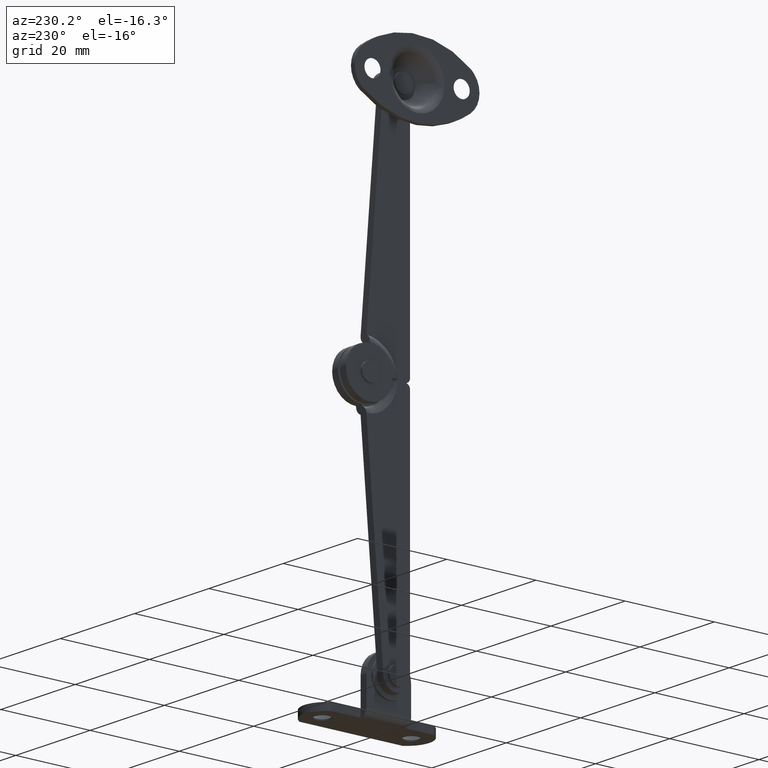
[diagram: clean part render]
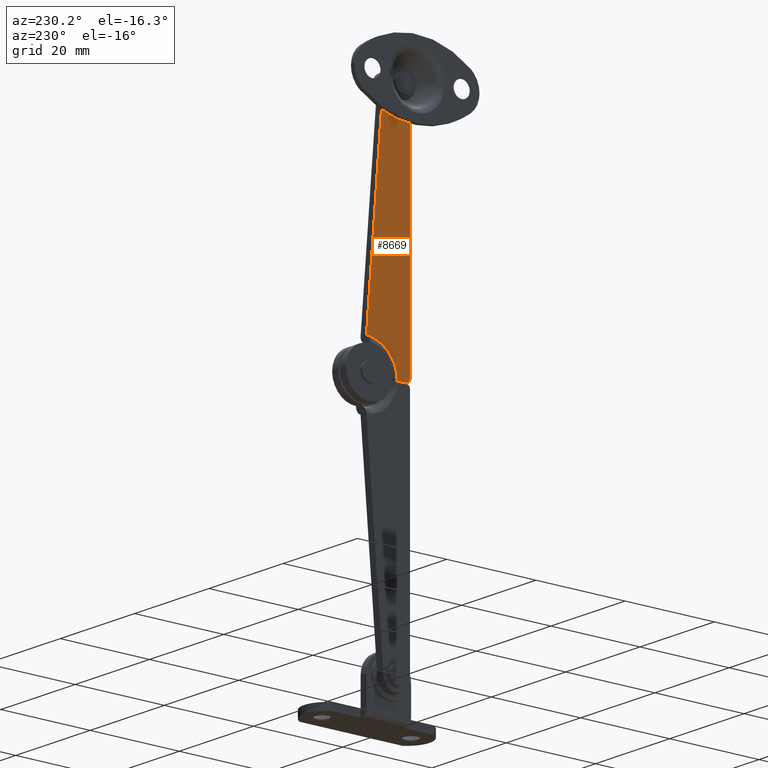
[diagram: same view with one face highlighted and labeled with its STEP entity id]
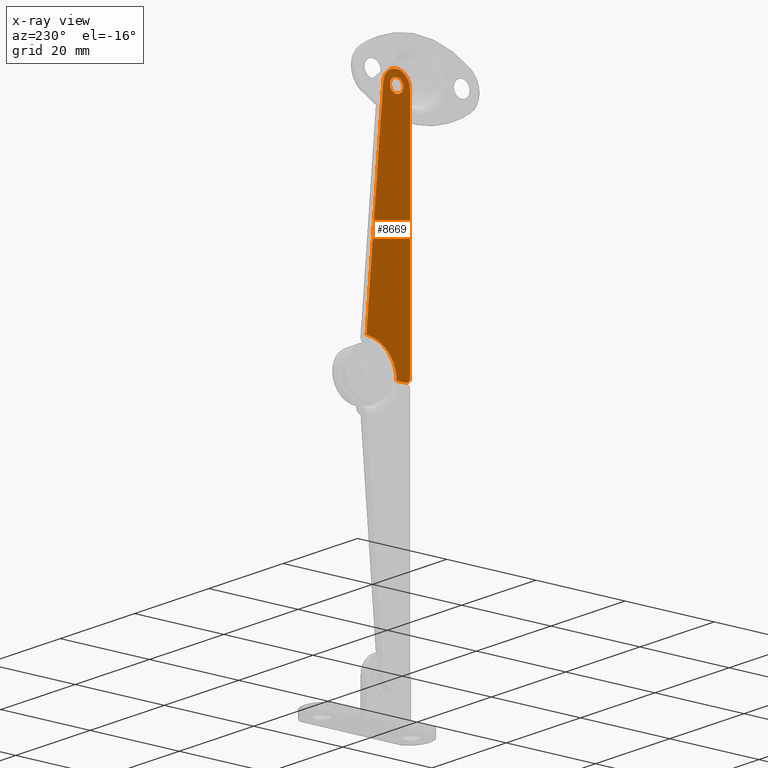
[diagram: x-ray of the same camera — body ghosted, the highlighted face saturated]
A machine part, auxiliary view. The second image highlights one B-rep face of the part: STEP entity #8669.
The next image is the same camera in x-ray: the body ghosted, the highlighted face saturated — about 0% of this face is hidden behind the body in this view.
In plain terms, the highlighted face is a freeform B-spline surface patch.
Its self-contained STEP definition (entity closure, byte-faithful):
#7969=CARTESIAN_POINT('',(5.500000000000000,1.105916693889246,51.986599350237071));
#7970=VERTEX_POINT('',#7969);
#7976=CARTESIAN_POINT('',(5.500000000000000,0.0,51.499984999999903));
#7977=VERTEX_POINT('',#7976);
#7978=CARTESIAN_POINT('',(5.500000000000000,1.105916693889246,51.986599350237071));
#7979=CARTESIAN_POINT('',(5.500000000000007,0.974766803413467,51.843185368621207));
#7980=CARTESIAN_POINT('',(5.499999999999983,0.634431930091727,51.593065090398753));
#7981=CARTESIAN_POINT('',(5.500000000000008,0.220267230335667,51.499630432689003));
#7982=CARTESIAN_POINT('',(5.500000000000000,0.0,51.499984999999903));
#7983=B_SPLINE_CURVE_WITH_KNOTS('',3,(#7978,#7979,#7980,#7981,#7982),.UNSPECIFIED.,.F.,.U.,(4,1,4),(0.000000086124274,0.582950313393399,1.243582380989990),.UNSPECIFIED.);
#7984=EDGE_CURVE('',#7970,#7977,#7983,.T.);
#7986=CARTESIAN_POINT('',(5.500000000000000,-1.499999999997086,52.999987956542753));
#7987=VERTEX_POINT('',#7986);
#7988=CARTESIAN_POINT('',(5.500000000000000,0.0,51.499984999999903));
#7989=CARTESIAN_POINT('',(5.499999999999999,-0.220947910850182,51.499695141368527));
#7990=CARTESIAN_POINT('',(5.499999999999985,-0.576546858355764,51.580028237526257));
#7991=CARTESIAN_POINT('',(5.500000000000021,-0.960563261711669,51.830059887139733));
#7992=CARTESIAN_POINT('',(5.499999999999971,-1.232707470878840,52.115804594653483));
#7993=CARTESIAN_POINT('',(5.500000000000045,-1.442468968291682,52.496887048927583));
#7994=CARTESIAN_POINT('',(5.499999999999997,-1.500099450196353,52.828172124453658));
#7995=CARTESIAN_POINT('',(5.500000000000000,-1.499999999997086,52.999987956542753));
#7996=B_SPLINE_CURVE_WITH_KNOTS('',3,(#7988,#7989,#7990,#7991,#7992,#7993,#7994,#7995),.UNSPECIFIED.,.F.,.U.,(4,1,1,1,1,4),(0.000000283921502,0.662700747276204,1.067679596140593,1.362179177619558,1.840828248528661,2.356255282954716),.UNSPECIFIED.);
#7997=EDGE_CURVE('',#7977,#7987,#7996,.T.);
#7999=CARTESIAN_POINT('',(5.500000000000000,0.0,54.499984999999903));
#8000=VERTEX_POINT('',#7999);
#8001=CARTESIAN_POINT('',(5.500000000000000,-1.499999999997086,52.999987956542753));
#8002=CARTESIAN_POINT('',(5.500000000000008,-1.500345512336090,53.220947114007693));
#8003=CARTESIAN_POINT('',(5.499999999999988,-1.419902177905739,53.576520632590217));
#8004=CARTESIAN_POINT('',(5.500000000000015,-1.169937325404411,53.960551616229267));
#8005=CARTESIAN_POINT('',(5.499999999999991,-0.884186536591172,54.232695602077428));
#8006=CARTESIAN_POINT('',(5.500000000000013,-0.503099174663944,54.442453581712137));
#8007=CARTESIAN_POINT('',(5.499999999999995,-0.171815620360912,54.500084185203640));
#8008=CARTESIAN_POINT('',(5.500000000000000,0.0,54.499984999999903));
#8009=B_SPLINE_CURVE_WITH_KNOTS('',3,(#8001,#8002,#8003,#8004,#8005,#8006,#8007,#8008),.UNSPECIFIED.,.F.,.U.,(4,1,1,1,1,4),(0.000000287959406,0.662699813077106,1.067678081423677,1.362177245450322,1.840825642440949,2.356251950158681),.UNSPECIFIED.);
#8010=EDGE_CURVE('',#7987,#8000,#8009,.T.);
#8012=CARTESIAN_POINT('',(5.500000000000000,1.074976047903055,54.046132350924211));
#8013=VERTEX_POINT('',#8012);
#8014=CARTESIAN_POINT('',(5.500000000000000,0.0,54.499984999999903));
#8015=CARTESIAN_POINT('',(5.499999999999996,0.187294913334052,54.500165317788863));
#8016=CARTESIAN_POINT('',(5.500000000000009,0.586636586035822,54.424126146093947));
#8017=CARTESIAN_POINT('',(5.499999999999993,0.927139462178764,54.198469280317887));
#8018=CARTESIAN_POINT('',(5.500000000000000,1.074976047903055,54.046132350924211));
#8019=B_SPLINE_CURVE_WITH_KNOTS('',3,(#8014,#8015,#8016,#8017,#8018),.UNSPECIFIED.,.F.,.U.,(4,1,4),(0.000000071665139,0.561822164002181,1.198513678600099),.UNSPECIFIED.);
#8020=EDGE_CURVE('',#8000,#8013,#8019,.T.);
#8055=CARTESIAN_POINT('',(5.500000000000000,1.499999999997086,52.999982043457031));
#8056=VERTEX_POINT('',#8055);
#8057=CARTESIAN_POINT('',(5.500000000000000,1.074976047903055,54.046132350924211));
#8058=CARTESIAN_POINT('',(5.499999999999998,1.184353631030366,53.933820985455263));
#8059=CARTESIAN_POINT('',(5.500000000000004,1.409746970323239,53.614682636482563));
#8060=CARTESIAN_POINT('',(5.499999999999996,1.500392870432549,53.229196005045132));
#8061=CARTESIAN_POINT('',(5.500000000000000,1.499999999997086,52.999982043457031));
#8062=B_SPLINE_CURVE_WITH_KNOTS('',3,(#8057,#8058,#8059,#8060,#8061),.UNSPECIFIED.,.F.,.U.,(4,1,4),(0.000000060385644,0.470336184875530,1.157742366879319),.UNSPECIFIED.);
#8063=EDGE_CURVE('',#8013,#8056,#8062,.T.);
#8065=CARTESIAN_POINT('',(5.500000000000000,1.499999999997086,52.999982043457031));
#8066=CARTESIAN_POINT('',(5.500000000000002,1.500071185159917,52.837714027780002));
#8067=CARTESIAN_POINT('',(5.500000000000003,1.439255870972230,52.466870341247699));
#8068=CARTESIAN_POINT('',(5.499999999999998,1.247077108548591,52.140265237280673));
#8069=CARTESIAN_POINT('',(5.500000000000000,1.105916693889246,51.986599350237071));
#8070=B_SPLINE_CURVE_WITH_KNOTS('',3,(#8065,#8066,#8067,#8068,#8069),.UNSPECIFIED.,.F.,.U.,(4,1,4),(0.000000063141497,0.486805923721400,1.112669403709148),.UNSPECIFIED.);
#8071=EDGE_CURVE('',#8056,#7970,#8070,.T.);
#8179=CARTESIAN_POINT('',(5.500000000000000,-0.006766460053694,4.143125E-019));
#8180=VERTEX_POINT('',#8179);
#8191=CARTESIAN_POINT('',(5.500000000000000,6.755491901599469,7.002498983616509));
#8192=VERTEX_POINT('',#8191);
#8193=CARTESIAN_POINT('',(5.500000000000000,6.755491901599469,7.002498983616509));
#8194=CARTESIAN_POINT('',(5.499999999999996,5.971150537457354,6.975685232410417));
#8195=CARTESIAN_POINT('',(5.500000000000009,4.913541561639267,6.757257002062677));
#8196=CARTESIAN_POINT('',(5.499999999999987,3.561555672159861,6.135635469624276));
#8197=CARTESIAN_POINT('',(5.500000000000013,2.549986000066321,5.471746295115617));
#8198=CARTESIAN_POINT('',(5.499999999999995,1.627133918950907,4.560858641851600));
#8199=CARTESIAN_POINT('',(5.500000000000015,0.810570097628508,3.382480247033548));
#8200=CARTESIAN_POINT('',(5.499999999999986,0.172165158916196,1.905580928265893));
#8201=CARTESIAN_POINT('',(5.500000000000014,-0.007022713730710,0.672632221480854));
#8202=CARTESIAN_POINT('',(5.500000000000000,-0.006766460053694,4.143125E-019));
#8203=B_SPLINE_CURVE_WITH_KNOTS('',3,(#8193,#8194,#8195,#8196,#8197,#8198,#8199,#8200,#8201,#8202),.UNSPECIFIED.,.F.,.U.,(4,1,1,1,1,1,1,4),(0.000000119131666,2.354118453559138,3.194892480188797,4.456032189337770,5.969384702665971,7.062362502680176,8.743892414950363,10.761709825843830),.UNSPECIFIED.);
#8204=EDGE_CURVE('',#8192,#8180,#8203,.T.);
#8496=CARTESIAN_POINT('',(5.500000000000000,-1.999999999999885,1.224606E-016));
#8497=VERTEX_POINT('',#8496);
#8503=CARTESIAN_POINT('',(5.500000000000000,-0.006766460053694,4.143125E-019));
#8504=CARTESIAN_POINT('',(5.500000000000000,-1.999999999999885,1.224606E-016));
#8505=QUASI_UNIFORM_CURVE('',1,(#8503,#8504),.UNSPECIFIED.,.F.,.U.);
#8506=EDGE_CURVE('',#8180,#8497,#8505,.T.);
#8517=CARTESIAN_POINT('',(5.500000000000000,2.990626677684695,53.236949289969097));
#8518=VERTEX_POINT('',#8517);
#8519=CARTESIAN_POINT('',(5.500000000000000,2.990626677684695,53.236949289969097));
#8520=CARTESIAN_POINT('',(5.500000000000000,6.755491901599469,7.002498983616509));
#8521=QUASI_UNIFORM_CURVE('',1,(#8519,#8520),.UNSPECIFIED.,.F.,.U.);
#8522=EDGE_CURVE('',#8518,#8192,#8521,.T.);
#8559=CARTESIAN_POINT('',(5.500000000000001,-0.118572530996184,55.997640843303657));
#8560=VERTEX_POINT('',#8559);
#8561=CARTESIAN_POINT('',(5.500000000000001,-0.118572530996184,55.997640843303657));
#8562=CARTESIAN_POINT('',(5.500000000000002,0.192221091295017,56.010079377234362));
#8563=CARTESIAN_POINT('',(5.500000000000005,0.841702454745387,55.934245769862862));
#8564=CARTESIAN_POINT('',(5.499999999999992,1.610367409183278,55.573414113967637));
#8565=CARTESIAN_POINT('',(5.500000000000019,2.160763859488015,55.107482528449879));
#8566=CARTESIAN_POINT('',(5.499999999999954,2.492099030699500,54.695413353506559));
#8567=CARTESIAN_POINT('',(5.500000000000063,2.831637814170950,54.088220696004747));
#8568=CARTESIAN_POINT('',(5.499999999999983,2.962568633767438,53.594792278516657));
#8569=CARTESIAN_POINT('',(5.500000000000000,2.990626677684695,53.236949289969097));
#8570=B_SPLINE_CURVE_WITH_KNOTS('',3,(#8561,#8562,#8563,#8564,#8565,#8566,#8567,#8568,#8569),.UNSPECIFIED.,.F.,.U.,(4,1,1,1,1,1,4),(0.000000108021760,0.933127680937999,1.938081127179381,2.512254809154739,3.086518928996446,3.517200838289102,4.593890559884289),.UNSPECIFIED.);
#8571=EDGE_CURVE('',#8560,#8518,#8570,.T.);
#8573=CARTESIAN_POINT('',(5.500000000000000,-3.0,52.999985000000002));
#8574=VERTEX_POINT('',#8573);
#8575=CARTESIAN_POINT('',(5.500000000000000,-3.0,52.999985000000002));
#8576=CARTESIAN_POINT('',(5.500000000000007,-3.000304081193808,53.358926857207223));
#8577=CARTESIAN_POINT('',(5.499999999999995,-2.899997202516121,53.908979008529187));
#8578=CARTESIAN_POINT('',(5.500000000000001,-2.509543296446037,54.708077747902763));
#8579=CARTESIAN_POINT('',(5.500000000000001,-2.030913507336401,55.256364526431817));
#8580=CARTESIAN_POINT('',(5.499999999999999,-1.431492425759064,55.657285304369843));
#8581=CARTESIAN_POINT('',(5.500000000000012,-0.833372444118241,55.909092269377652));
#8582=CARTESIAN_POINT('',(5.499999999999994,-0.381564643528103,55.987323124330999));
#8583=CARTESIAN_POINT('',(5.500000000000001,-0.118572530996184,55.997640843303657));
#8584=B_SPLINE_CURVE_WITH_KNOTS('',3,(#8575,#8576,#8577,#8578,#8579,#8580,#8581,#8582,#8583),.UNSPECIFIED.,.F.,.U.,(4,1,1,1,1,1,4),(0.000000108013510,1.076690894653815,1.650946141133624,2.655812167757409,3.230076102008616,3.804320728037729,4.593895104111393),.UNSPECIFIED.);
#8585=EDGE_CURVE('',#8574,#8560,#8584,.T.);
#8602=CARTESIAN_POINT('',(5.500000000000000,-2.999999999999885,1.0));
#8603=VERTEX_POINT('',#8602);
#8604=CARTESIAN_POINT('',(5.500000000000000,-2.999999999999885,1.0));
#8605=CARTESIAN_POINT('',(5.500000000000000,-3.0,52.999985000000002));
#8606=QUASI_UNIFORM_CURVE('',1,(#8604,#8605),.UNSPECIFIED.,.F.,.U.);
#8607=EDGE_CURVE('',#8603,#8574,#8606,.T.);
#8633=CARTESIAN_POINT('',(5.500000000000000,-1.999999999999885,1.224606E-016));
#8634=CARTESIAN_POINT('',(5.499999999999991,-2.171926202962702,-0.000447023425875));
#8635=CARTESIAN_POINT('',(5.500000000000021,-2.441377582177203,0.071393588725554));
#8636=CARTESIAN_POINT('',(5.499999999999996,-2.754409555582610,0.315640241368787));
#8637=CARTESIAN_POINT('',(5.499999999999973,-2.949482155836862,0.615547106133597));
#8638=CARTESIAN_POINT('',(5.500000000000030,-3.000139624939686,0.869079879249412));
#8639=CARTESIAN_POINT('',(5.500000000000000,-2.999999999999885,1.0));
#8640=B_SPLINE_CURVE_WITH_KNOTS('',3,(#8633,#8634,#8635,#8636,#8637,#8638,#8639),.UNSPECIFIED.,.F.,.U.,(4,1,1,1,4),(0.000000280012489,0.515444720644189,0.809920585362190,1.178126924052072,1.570835744389278),.UNSPECIFIED.);
#8641=EDGE_CURVE('',#8497,#8603,#8640,.T.);
#8647=CARTESIAN_POINT('',(5.500000000000000,7.242778520021171,-2.797190653429218));
#8648=CARTESIAN_POINT('',(5.500000000000000,-3.487287054526173,-2.797190653429218));
#8649=CARTESIAN_POINT('',(5.500000000000000,7.242778520021171,58.797007209746347));
#8650=CARTESIAN_POINT('',(5.500000000000000,-3.487287054526173,58.797007209746347));
#8651=B_SPLINE_SURFACE_WITH_KNOTS('',1,1,((#8647,#8649),(#8648,#8650)),.UNSPECIFIED.,.F.,.F.,.U.,(2,2),(2,2),(0.0,10.730065574547339),(0.0,61.594197863175573),.UNSPECIFIED.);
#8652=ORIENTED_EDGE('',*,*,#8204,.T.);
#8653=ORIENTED_EDGE('',*,*,#8506,.T.);
#8654=ORIENTED_EDGE('',*,*,#8641,.T.);
#8655=ORIENTED_EDGE('',*,*,#8607,.T.);
#8656=ORIENTED_EDGE('',*,*,#8585,.T.);
#8657=ORIENTED_EDGE('',*,*,#8571,.T.);
#8658=ORIENTED_EDGE('',*,*,#8522,.T.);
#8659=EDGE_LOOP('',(#8652,#8653,#8654,#8655,#8656,#8657,#8658));
#8660=FACE_OUTER_BOUND('',#8659,.T.);
#8661=ORIENTED_EDGE('',*,*,#7997,.F.);
#8662=ORIENTED_EDGE('',*,*,#7984,.F.);
#8663=ORIENTED_EDGE('',*,*,#8071,.F.);
#8664=ORIENTED_EDGE('',*,*,#8063,.F.);
#8665=ORIENTED_EDGE('',*,*,#8020,.F.);
#8666=ORIENTED_EDGE('',*,*,#8010,.F.);
#8667=EDGE_LOOP('',(#8661,#8662,#8663,#8664,#8665,#8666));
#8668=FACE_BOUND('',#8667,.T.);
#8669=ADVANCED_FACE('',(#8660,#8668),#8651,.T.);